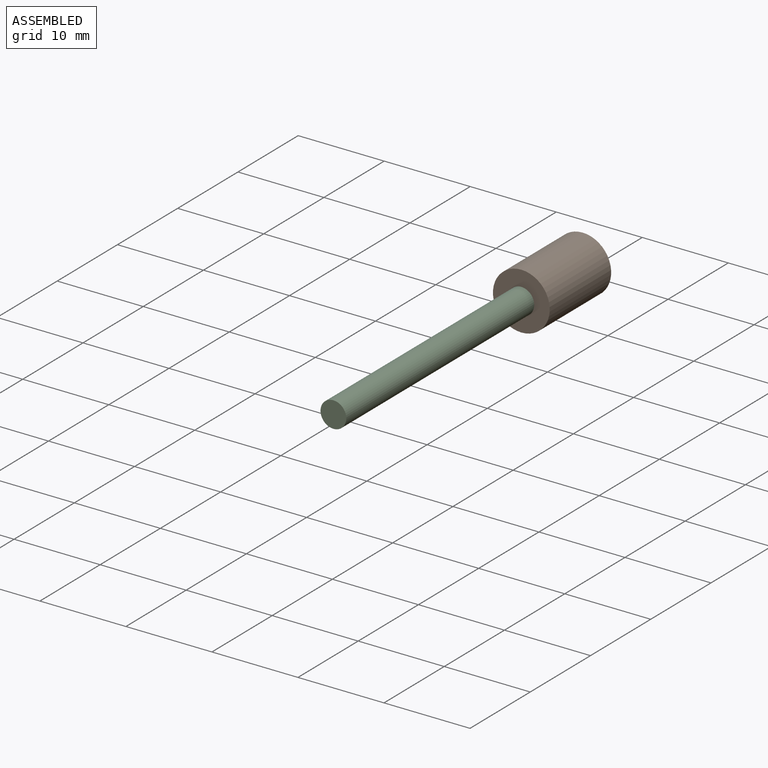
[diagram: assembled view]
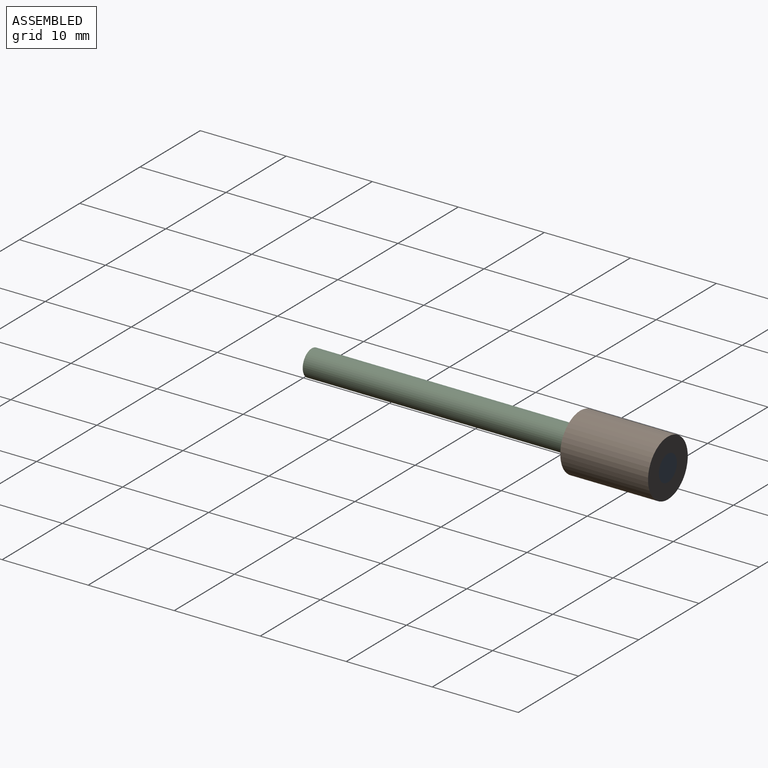
[diagram: assembled view, second angle]
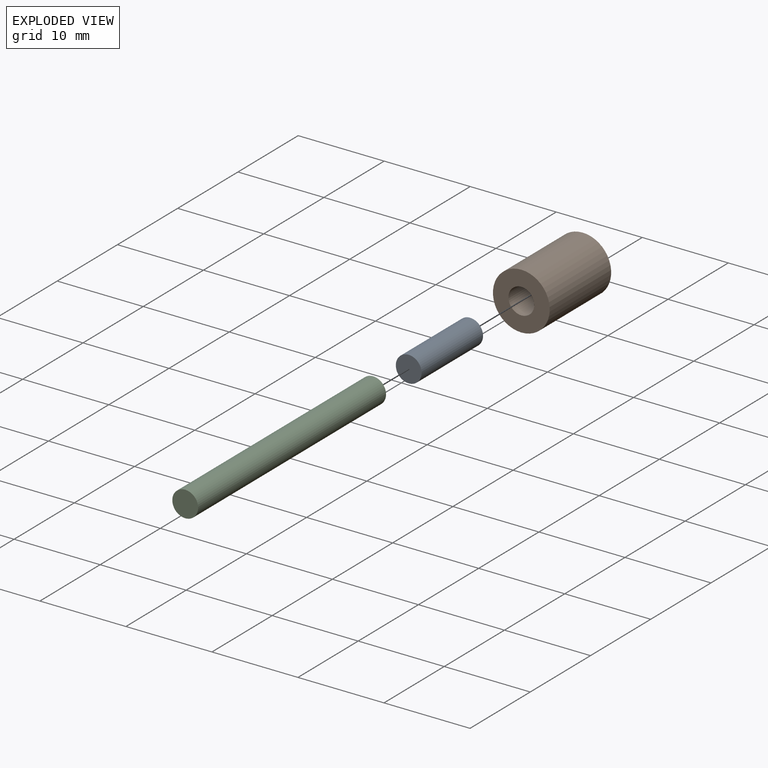
[diagram: exploded view]
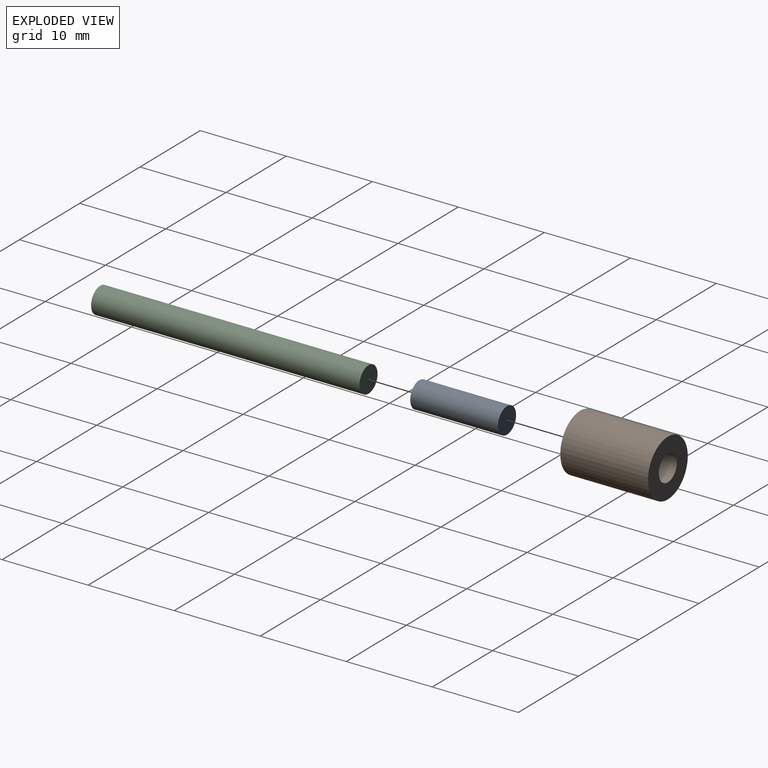
[diagram: exploded view, second angle]
ASSEMBLY  parts=3 mates=2
PART A: 3 faces, bbox 3x10.2x3 mm
  f0: cylinder r=1.5mm len=10.2mm, axis (0,1,0), area 96.1mm2, adj f1,f2
  f1: plane 3x3mm, normal (0,-1,0), area 7.1mm2, adj f0
  f2: plane 3x3mm, normal (0,1,0), area 7.1mm2, adj f0
PART B: 4 faces, bbox 6.6x10.2x6.6 mm
  f0: cylinder r=1.5mm len=10.2mm, axis (0,1,0), area 96.1mm2, adj f2,f3
  f1: cylinder r=3.3mm len=10.2mm, axis (0,1,0), area 211.5mm2, adj f2,f3
  f2: plane 6.6x6.6mm, normal (0,-1,0), area 27.1mm2, adj f0,f1
  f3: plane 6.6x6.6mm, normal (0,1,0), area 27.1mm2, adj f0,f1
PART C: 3 faces, bbox 3x31.2x3 mm
  f0: cylinder r=1.5mm len=31.2mm, axis (0,-1,0), area 294.1mm2, adj f1,f2
  f1: plane 3x3mm, normal (0,1,0), area 7.1mm2, adj f0
  f2: plane 3x3mm, normal (0,-1,0), area 7.1mm2, adj f0
PLACE A rot(axis=(1,0,0),180deg) t=(18.22,-5.27,77.99)mm
PLACE B rot(axis=(1,0,0),180deg) t=(18.22,-5.27,77.99)mm
PLACE C rot(axis=(-0.29,0,0.96),180deg) t=(-54.25,-5.27,-45.26)mm
MATE revolute B.f0 <-> C.f0  axis (0,-1,0) through (-36.36,-5.27,27.15)mm
MATE fastened A.f0 <-> B.f0  axis (0,1,0) through (-36.36,4.93,27.15)mm
